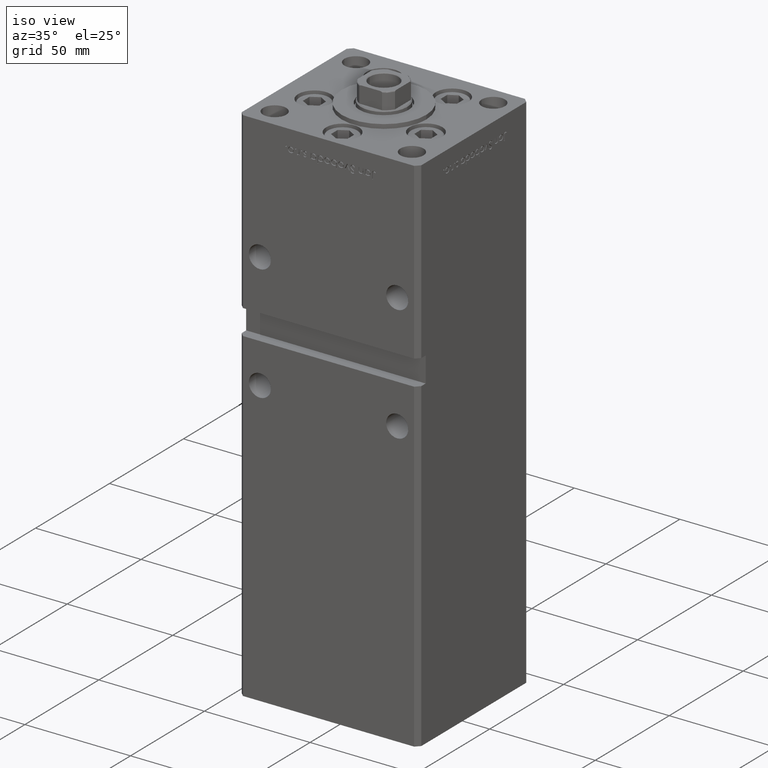
[diagram: clean part render]
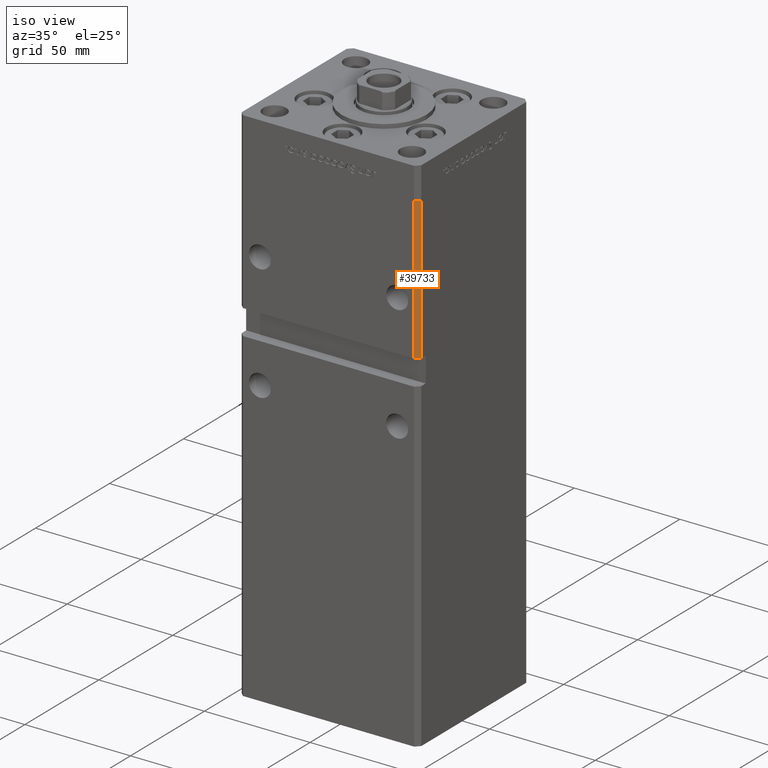
[diagram: same view with one face highlighted and labeled with its STEP entity id]
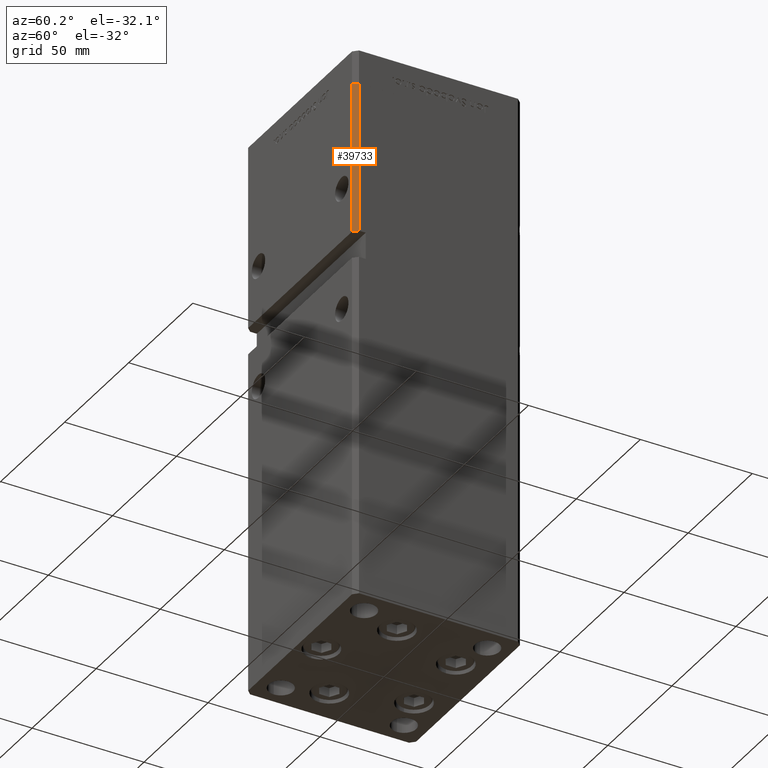
[diagram: same view with one face highlighted and labeled with its STEP entity id]
A machine part, iso view. The second image highlights one B-rep face of the part: STEP entity #39733.
A second angle (auxiliary view) of the same face is appended — the face is thin or edge-on in the first view.
In plain terms, the highlighted planar face has unit normal (0.7071, -0.7071, 0).
Its self-contained STEP definition (entity closure, byte-faithful):
#995 = EDGE_CURVE ( 'NONE', #7177, #24782, #27315, .T. ) ;
#1374 = ORIENTED_EDGE ( 'NONE', *, *, #995, .T. ) ;
#4592 = CARTESIAN_POINT ( 'NONE',  ( 40.49999999999998579, -37.50000000000000711, 218.5000000000000000 ) ) ;
#5002 = PLANE ( 'NONE',  #16813 ) ;
#7177 = VERTEX_POINT ( 'NONE', #4592 ) ;
#11175 = DIRECTION ( 'NONE',  ( -0.000000000000000000, -0.000000000000000000, -1.000000000000000000 ) ) ;
#12464 = VECTOR ( 'NONE', #39961, 1000.000000000000114 ) ;
#14605 = CARTESIAN_POINT ( 'NONE',  ( 42.49999999999998579, -35.50000000000000711, 218.5000000000000000 ) ) ;
#14700 = CARTESIAN_POINT ( 'NONE',  ( 40.49999999999998579, -37.50000000000000711, 218.5000000000000000 ) ) ;
#16813 = AXIS2_PLACEMENT_3D ( 'NONE', #38335, #33766, #25960 ) ;
#18749 = VECTOR ( 'NONE', #31513, 1000.000000000000114 ) ;
#18891 = LINE ( 'NONE', #14605, #18749 ) ;
#21083 = CARTESIAN_POINT ( 'NONE',  ( 40.49999999999997868, -37.50000000000000711, 151.0000000000000568 ) ) ;
#24782 = VERTEX_POINT ( 'NONE', #21083 ) ;
#25258 = DIRECTION ( 'NONE',  ( -0.000000000000000000, -0.000000000000000000, -1.000000000000000000 ) ) ;
#25960 = DIRECTION ( 'NONE',  ( 0.7071067811865474617, 0.7071067811865474617, 0.000000000000000000 ) ) ;
#26086 = CARTESIAN_POINT ( 'NONE',  ( 42.49999999999998579, -35.50000000000000711, 151.0000000000000568 ) ) ;
#27315 = LINE ( 'NONE', #14700, #40536 ) ;
#30677 = VERTEX_POINT ( 'NONE', #38309 ) ;
#30882 = ORIENTED_EDGE ( 'NONE', *, *, #46982, .T. ) ;
#31108 = LINE ( 'NONE', #34867, #12464 ) ;
#31513 = DIRECTION ( 'NONE',  ( -0.7071067811865474617, -0.7071067811865474617, 0.000000000000000000 ) ) ;
#32798 = LINE ( 'NONE', #37088, #42940 ) ;
#33276 = ORIENTED_EDGE ( 'NONE', *, *, #51390, .F. ) ;
#33766 = DIRECTION ( 'NONE',  ( 0.7071067811865475727, -0.7071067811865475727, 0.000000000000000000 ) ) ;
#34360 = EDGE_CURVE ( 'NONE', #42026, #24782, #31108, .T. ) ;
#34400 = ORIENTED_EDGE ( 'NONE', *, *, #34360, .F. ) ;
#34867 = CARTESIAN_POINT ( 'NONE',  ( 42.49999999999998579, -35.50000000000000711, 151.0000000000000568 ) ) ;
#37088 = CARTESIAN_POINT ( 'NONE',  ( 42.49999999999998579, -35.50000000000000711, 218.5000000000000000 ) ) ;
#38309 = CARTESIAN_POINT ( 'NONE',  ( 42.49999999999998579, -35.50000000000000711, 218.5000000000000000 ) ) ;
#38335 = CARTESIAN_POINT ( 'NONE',  ( 42.49999999999998579, -35.50000000000000711, 218.5000000000000000 ) ) ;
#39733 = ADVANCED_FACE ( 'NONE', ( #50443 ), #5002, .T. ) ;
#39961 = DIRECTION ( 'NONE',  ( -0.7071067811865474617, -0.7071067811865474617, 0.000000000000000000 ) ) ;
#40536 = VECTOR ( 'NONE', #11175, 1000.000000000000000 ) ;
#42026 = VERTEX_POINT ( 'NONE', #26086 ) ;
#42940 = VECTOR ( 'NONE', #25258, 1000.000000000000000 ) ;
#46982 = EDGE_CURVE ( 'NONE', #30677, #7177, #18891, .T. ) ;
#48608 = EDGE_LOOP ( 'NONE', ( #34400, #33276, #30882, #1374 ) ) ;
#50443 = FACE_OUTER_BOUND ( 'NONE', #48608, .T. ) ;
#51390 = EDGE_CURVE ( 'NONE', #30677, #42026, #32798, .T. ) ;